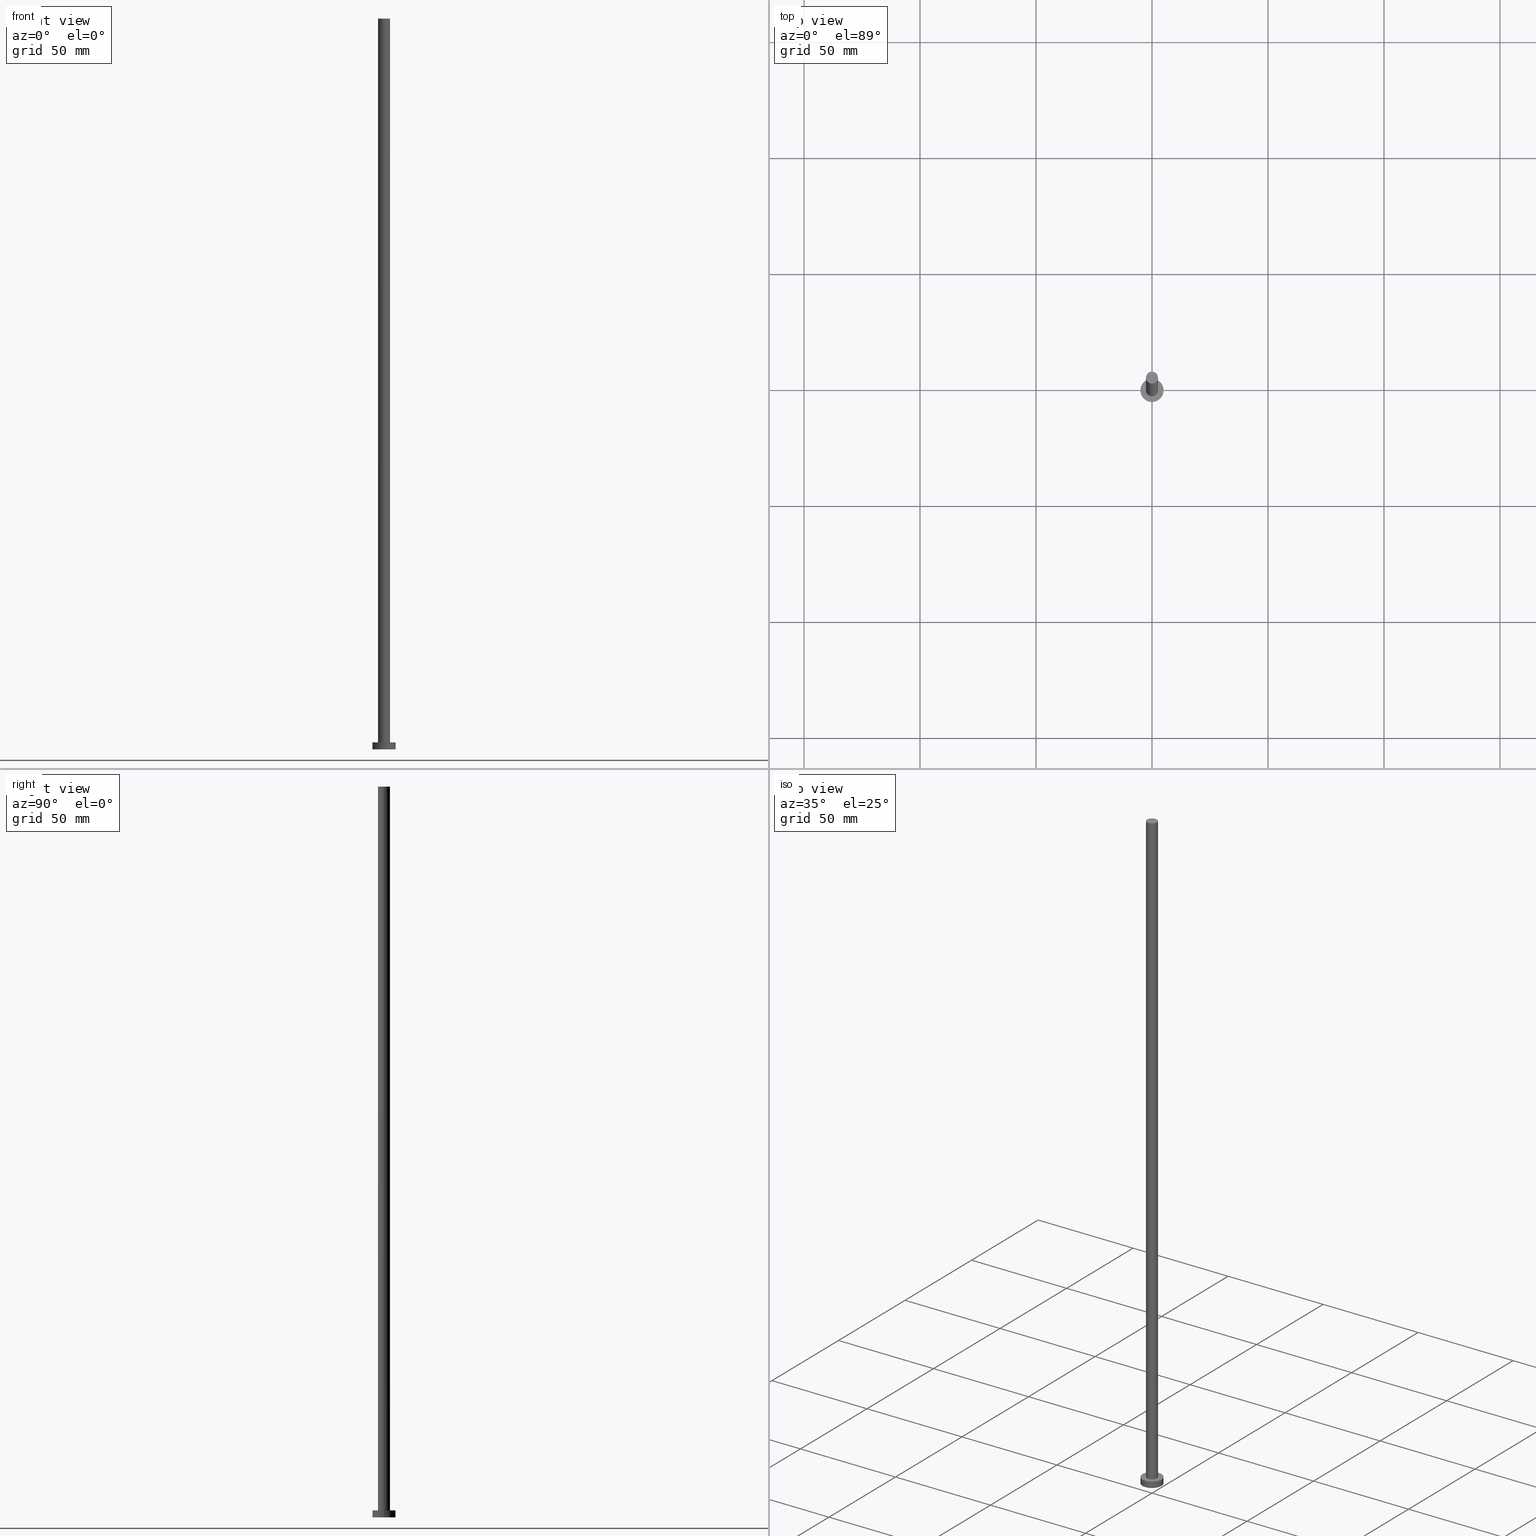
[diagram: canonical four-view strip — front | top / right | iso, engineering-drawing reading convention]
A machine part, canonical four-view strip (front | top / right | iso — engineering-drawing reading convention). The complete STEP part file that produces these views, byte-faithful:
ISO-10303-21;
HEADER;
FILE_DESCRIPTION (( 'STEP AP203' ),
    '1' );
FILE_NAME ('8239.STEP',
    '2023-02-13T13:23:59',
    ( '' ),
    ( '' ),
    'SwSTEP 2.0',
    'SolidWorks 2019',
    '' );
FILE_SCHEMA (( 'CONFIG_CONTROL_DESIGN' ));
ENDSEC;

DATA;
#1 = EDGE_LOOP ( 'NONE', ( #50, #31, #140, #69 ) ) ;
#2 = APPROVAL_DATE_TIME ( #41, #67 ) ;
#3 = ORIENTED_EDGE ( 'NONE', *, *, #131, .T. ) ;
#4 = PERSON_AND_ORGANIZATION_ROLE ( 'classification_officer' ) ;
#5 = CIRCLE ( 'NONE', #33, 2.600000000000000089 ) ;
#6 = ADVANCED_FACE ( 'NONE', ( #109 ), #149, .T. ) ;
#7 = DIRECTION ( 'NONE',  ( 1.000000000000000000, 0.000000000000000000, -0.000000000000000000 ) ) ;
#8 = FACE_OUTER_BOUND ( 'NONE', #111, .T. ) ;
#9 = CARTESIAN_POINT ( 'NONE',  ( 0.000000000000000000, 0.000000000000000000, 3.000000000000000000 ) ) ;
#10 = DIRECTION ( 'NONE',  ( 0.000000000000000000, 0.000000000000000000, 1.000000000000000000 ) ) ;
#11 = AXIS2_PLACEMENT_3D ( 'NONE', #178, #157, #232 ) ;
#12 = DIRECTION ( 'NONE',  ( -1.000000000000000000, 0.000000000000000000, 0.000000000000000000 ) ) ;
#13 = AXIS2_PLACEMENT_3D ( 'NONE', #101, #64, #176 ) ;
#14 = APPROVAL_STATUS ( 'not_yet_approved' ) ;
#15 = ADVANCED_FACE ( 'NONE', ( #227 ), #224, .T. ) ;
#16 = CARTESIAN_POINT ( 'NONE',  ( 0.000000000000000000, 0.000000000000000000, 0.000000000000000000 ) ) ;
#17 = AXIS2_PLACEMENT_3D ( 'NONE', #250, #152, #188 ) ;
#18 = CC_DESIGN_APPROVAL ( #67, ( #133 ) ) ;
#19 = VERTEX_POINT ( 'NONE', #129 ) ;
#20 = PLANE ( 'NONE',  #89 ) ;
#21 = APPROVAL_DATE_TIME ( #108, #138 ) ;
#22 = PERSON_AND_ORGANIZATION ( #136, #32 ) ;
#23 = ORIENTED_EDGE ( 'NONE', *, *, #150, .T. ) ;
#24 = CARTESIAN_POINT ( 'NONE',  ( 5.000000000000000000, 6.123233995736766282E-16, 0.000000000000000000 ) ) ;
#25 = CIRCLE ( 'NONE', #186, 2.600000000000000089 ) ;
#26 = APPROVAL_PERSON_ORGANIZATION ( #22, #67, #181 ) ;
#27 = COORDINATED_UNIVERSAL_TIME_OFFSET ( 1, 0, .AHEAD. ) ;
#28 = DIRECTION ( 'NONE',  ( 1.000000000000000000, 0.000000000000000000, 0.000000000000000000 ) ) ;
#29 = ADVANCED_BREP_SHAPE_REPRESENTATION ( '8239', ( #107, #11 ), #99 ) ;
#30 = DIRECTION ( 'NONE',  ( 1.000000000000000000, 0.000000000000000000, 0.000000000000000000 ) ) ;
#31 = ORIENTED_EDGE ( 'NONE', *, *, #112, .T. ) ;
#32 = ORGANIZATION ( 'NEUR�EN�', 'NEUR�EN�', '' ) ;
#33 = AXIS2_PLACEMENT_3D ( 'NONE', #88, #93, #28 ) ;
#34 = PERSON_AND_ORGANIZATION ( #136, #32 ) ;
#35 = CC_DESIGN_PERSON_AND_ORGANIZATION_ASSIGNMENT ( #223, #221, ( #78 ) ) ;
#36 = DIRECTION ( 'NONE',  ( 0.000000000000000000, 0.000000000000000000, 1.000000000000000000 ) ) ;
#37 = CARTESIAN_POINT ( 'NONE',  ( 0.000000000000000000, 0.000000000000000000, 0.000000000000000000 ) ) ;
#38 = EDGE_LOOP ( 'NONE', ( #255, #102, #23, #245 ) ) ;
#39 = DIRECTION ( 'NONE',  ( 0.000000000000000000, 0.000000000000000000, 1.000000000000000000 ) ) ;
#40 = CARTESIAN_POINT ( 'NONE',  ( 0.000000000000000000, 0.000000000000000000, 315.0000000000000000 ) ) ;
#41 = DATE_AND_TIME ( #240, #171 ) ;
#42 = PERSON_AND_ORGANIZATION ( #136, #32 ) ;
#43 = ORIENTED_EDGE ( 'NONE', *, *, #45, .T. ) ;
#44 = CC_DESIGN_APPROVAL ( #138, ( #78 ) ) ;
#45 = EDGE_CURVE ( 'NONE', #19, #184, #199, .T. ) ;
#46 = ORIENTED_EDGE ( 'NONE', *, *, #100, .F. ) ;
#47 = SECURITY_CLASSIFICATION_LEVEL ( 'unclassified' ) ;
#48 = DIRECTION ( 'NONE',  ( 0.000000000000000000, 0.000000000000000000, 1.000000000000000000 ) ) ;
#49 = PERSON_AND_ORGANIZATION ( #136, #32 ) ;
#50 = ORIENTED_EDGE ( 'NONE', *, *, #182, .F. ) ;
#51 = AXIS2_PLACEMENT_3D ( 'NONE', #60, #197, #62 ) ;
#52 = CARTESIAN_POINT ( 'NONE',  ( -5.000000000000000000, 0.000000000000000000, 3.000000000000000000 ) ) ;
#53 = APPLICATION_CONTEXT ( 'configuration controlled 3d designs of mechanical parts and assemblies' ) ;
#54 = LINE ( 'NONE', #164, #55 ) ;
#55 = VECTOR ( 'NONE', #79, 1000.000000000000000 ) ;
#56 = EDGE_CURVE ( 'NONE', #144, #147, #54, .T. ) ;
#57 = APPROVAL_PERSON_ORGANIZATION ( #42, #138, #83 ) ;
#58 = PERSON_AND_ORGANIZATION_ROLE ( 'design_owner' ) ;
#59 = PRODUCT_RELATED_PRODUCT_CATEGORY ( 'detail', '', ( #235 ) ) ;
#60 = CARTESIAN_POINT ( 'NONE',  ( 0.000000000000000000, 0.000000000000000000, 3.000000000000000000 ) ) ;
#61 = DIRECTION ( 'NONE',  ( 1.000000000000000000, 0.000000000000000000, 0.000000000000000000 ) ) ;
#62 = DIRECTION ( 'NONE',  ( 1.000000000000000000, 0.000000000000000000, -0.000000000000000000 ) ) ;
#63 = ORIENTED_EDGE ( 'NONE', *, *, #195, .F. ) ;
#64 = DIRECTION ( 'NONE',  ( 0.000000000000000000, 0.000000000000000000, 1.000000000000000000 ) ) ;
#65 = DATE_AND_TIME ( #244, #115 ) ;
#66 = APPROVAL_STATUS ( 'not_yet_approved' ) ;
#67 = APPROVAL ( #66, 'NEUR�EN�' ) ;
#68 = AXIS2_PLACEMENT_3D ( 'NONE', #125, #222, #30 ) ;
#69 = ORIENTED_EDGE ( 'NONE', *, *, #150, .F. ) ;
#70 = AXIS2_PLACEMENT_3D ( 'NONE', #40, #139, #155 ) ;
#71 = COORDINATED_UNIVERSAL_TIME_OFFSET ( 1, 0, .AHEAD. ) ;
#72 = DIRECTION ( 'NONE',  ( -0.000000000000000000, -0.000000000000000000, -1.000000000000000000 ) ) ;
#73 = APPROVAL_STATUS ( 'not_yet_approved' ) ;
#74 = ORIENTED_EDGE ( 'NONE', *, *, #173, .T. ) ;
#75 = ORIENTED_EDGE ( 'NONE', *, *, #56, .F. ) ;
#76 = ORIENTED_EDGE ( 'NONE', *, *, #182, .T. ) ;
#77 = CIRCLE ( 'NONE', #153, 2.600000000000000089 ) ;
#78 = PRODUCT_DEFINITION_FORMATION_WITH_SPECIFIED_SOURCE ( 'LIBOVOLN�', '', #235, .NOT_KNOWN. ) ;
#79 = DIRECTION ( 'NONE',  ( -0.000000000000000000, -0.000000000000000000, -1.000000000000000000 ) ) ;
#80 = CARTESIAN_POINT ( 'NONE',  ( 0.000000000000000000, 0.000000000000000000, 3.000000000000000000 ) ) ;
#81 = AXIS2_PLACEMENT_3D ( 'NONE', #121, #117, #213 ) ;
#82 = VERTEX_POINT ( 'NONE', #96 ) ;
#83 = APPROVAL_ROLE ( '' ) ;
#84 = ADVANCED_FACE ( 'NONE', ( #207 ), #204, .T. ) ;
#85 = EDGE_LOOP ( 'NONE', ( #43, #76 ) ) ;
#86 = CIRCLE ( 'NONE', #185, 5.000000000000000000 ) ;
#87 = CALENDAR_DATE ( 2023, 13, 2 ) ;
#88 = CARTESIAN_POINT ( 'NONE',  ( 0.000000000000000000, 0.000000000000000000, 3.000000000000000000 ) ) ;
#89 = AXIS2_PLACEMENT_3D ( 'NONE', #37, #251, #217 ) ;
#90 = DATE_AND_TIME ( #87, #122 ) ;
#91 = CYLINDRICAL_SURFACE ( 'NONE', #229, 5.000000000000000000 ) ;
#92 = DIRECTION ( 'NONE',  ( -0.000000000000000000, -0.000000000000000000, -1.000000000000000000 ) ) ;
#93 = DIRECTION ( 'NONE',  ( 0.000000000000000000, 0.000000000000000000, 1.000000000000000000 ) ) ;
#94 = EDGE_CURVE ( 'NONE', #124, #82, #5, .T. ) ;
#95 = APPLICATION_CONTEXT ( 'configuration controlled 3d designs of mechanical parts and assemblies' ) ;
#96 = CARTESIAN_POINT ( 'NONE',  ( -2.600000000000000089, 0.000000000000000000, 3.000000000000000000 ) ) ;
#97 = APPROVAL_ROLE ( '' ) ;
#98 = CLOSED_SHELL ( 'NONE', ( #202, #156, #6, #211, #214, #15, #84 ) ) ;
#99 =( GEOMETRIC_REPRESENTATION_CONTEXT ( 3 ) GLOBAL_UNCERTAINTY_ASSIGNED_CONTEXT ( ( #248 ) ) GLOBAL_UNIT_ASSIGNED_CONTEXT ( ( #212, #177, #234 ) ) REPRESENTATION_CONTEXT ( 'NONE', 'WORKASPACE' ) );
#100 = EDGE_CURVE ( 'NONE', #236, #191, #243, .T. ) ;
#101 = CARTESIAN_POINT ( 'NONE',  ( 0.000000000000000000, 0.000000000000000000, 0.000000000000000000 ) ) ;
#102 = ORIENTED_EDGE ( 'NONE', *, *, #45, .F. ) ;
#103 = VECTOR ( 'NONE', #72, 1000.000000000000000 ) ;
#104 = CC_DESIGN_PERSON_AND_ORGANIZATION_ASSIGNMENT ( #161, #237, ( #169 ) ) ;
#105 = DATE_TIME_ROLE ( 'creation_date' ) ;
#106 = CARTESIAN_POINT ( 'NONE',  ( 0.000000000000000000, 0.000000000000000000, 315.0000000000000000 ) ) ;
#107 = MANIFOLD_SOLID_BREP ( 'P�idat vysunut�m3', #98 ) ;
#108 = DATE_AND_TIME ( #148, #175 ) ;
#109 = FACE_OUTER_BOUND ( 'NONE', #110, .T. ) ;
#110 = EDGE_LOOP ( 'NONE', ( #75, #63, #218, #74 ) ) ;
#111 = EDGE_LOOP ( 'NONE', ( #165, #216, #249, #46 ) ) ;
#112 = EDGE_CURVE ( 'NONE', #184, #124, #209, .T. ) ;
#113 = DIRECTION ( 'NONE',  ( -0.000000000000000000, -0.000000000000000000, -1.000000000000000000 ) ) ;
#114 = VECTOR ( 'NONE', #92, 1000.000000000000000 ) ;
#115 = LOCAL_TIME ( 14, 23, 59.00000000000000000, #27 ) ;
#116 = FACE_OUTER_BOUND ( 'NONE', #130, .T. ) ;
#117 = DIRECTION ( 'NONE',  ( 0.000000000000000000, 0.000000000000000000, 1.000000000000000000 ) ) ;
#118 = APPROVAL ( #14, 'NEUR�EN�' ) ;
#119 = CARTESIAN_POINT ( 'NONE',  ( -5.000000000000000000, 0.000000000000000000, 3.000000000000000000 ) ) ;
#120 = ORIENTED_EDGE ( 'NONE', *, *, #94, .F. ) ;
#121 = CARTESIAN_POINT ( 'NONE',  ( 0.000000000000000000, 0.000000000000000000, 3.000000000000000000 ) ) ;
#122 = LOCAL_TIME ( 14, 23, 59.00000000000000000, #128 ) ;
#123 = DATE_TIME_ROLE ( 'classification_date' ) ;
#124 = VERTEX_POINT ( 'NONE', #189 ) ;
#125 = CARTESIAN_POINT ( 'NONE',  ( 0.000000000000000000, 0.000000000000000000, 315.0000000000000000 ) ) ;
#126 = COORDINATED_UNIVERSAL_TIME_OFFSET ( 1, 0, .AHEAD. ) ;
#127 = DIRECTION ( 'NONE',  ( 1.000000000000000000, 0.000000000000000000, 0.000000000000000000 ) ) ;
#128 = COORDINATED_UNIVERSAL_TIME_OFFSET ( 1, 0, .AHEAD. ) ;
#129 = CARTESIAN_POINT ( 'NONE',  ( -2.600000000000000089, 0.000000000000000000, 315.0000000000000000 ) ) ;
#130 = EDGE_LOOP ( 'NONE', ( #172, #3 ) ) ;
#131 = EDGE_CURVE ( 'NONE', #144, #236, #193, .T. ) ;
#132 = CARTESIAN_POINT ( 'NONE',  ( 0.000000000000000000, 0.000000000000000000, 315.0000000000000000 ) ) ;
#133 = SECURITY_CLASSIFICATION ( '', '', #47 ) ;
#134 = APPLICATION_PROTOCOL_DEFINITION ( 'international standard', 'config_control_design', 1994, #95 ) ;
#135 = AXIS2_PLACEMENT_3D ( 'NONE', #106, #113, #12 ) ;
#136 = PERSON ( 'NEUR�EN�', 'NEUR�EN�', 'NEUR�EN�', ('NEUR�EN�'), ('NEUR�EN�'), ('NEUR�EN�') ) ;
#137 = FACE_BOUND ( 'NONE', #160, .T. ) ;
#138 = APPROVAL ( #73, 'NEUR�EN�' ) ;
#139 = DIRECTION ( 'NONE',  ( -0.000000000000000000, -0.000000000000000000, -1.000000000000000000 ) ) ;
#140 = ORIENTED_EDGE ( 'NONE', *, *, #94, .T. ) ;
#141 = CC_DESIGN_APPROVAL ( #118, ( #169 ) ) ;
#142 = FACE_OUTER_BOUND ( 'NONE', #1, .T. ) ;
#143 = CALENDAR_DATE ( 2023, 13, 2 ) ;
#144 = VERTEX_POINT ( 'NONE', #206 ) ;
#145 = CC_DESIGN_DATE_AND_TIME_ASSIGNMENT ( #65, #105, ( #169 ) ) ;
#146 = COORDINATED_UNIVERSAL_TIME_OFFSET ( 1, 0, .AHEAD. ) ;
#147 = VERTEX_POINT ( 'NONE', #24 ) ;
#148 = CALENDAR_DATE ( 2023, 13, 2 ) ;
#149 = CYLINDRICAL_SURFACE ( 'NONE', #17, 5.000000000000000000 ) ;
#150 = EDGE_CURVE ( 'NONE', #19, #82, #168, .T. ) ;
#151 = CARTESIAN_POINT ( 'NONE',  ( 0.000000000000000000, 0.000000000000000000, 3.000000000000000000 ) ) ;
#152 = DIRECTION ( 'NONE',  ( -0.000000000000000000, -0.000000000000000000, -1.000000000000000000 ) ) ;
#153 = AXIS2_PLACEMENT_3D ( 'NONE', #80, #215, #231 ) ;
#154 = PERSON_AND_ORGANIZATION ( #136, #32 ) ;
#155 = DIRECTION ( 'NONE',  ( -1.000000000000000000, 0.000000000000000000, 0.000000000000000000 ) ) ;
#156 = ADVANCED_FACE ( 'NONE', ( #8 ), #91, .T. ) ;
#157 = DIRECTION ( 'NONE',  ( 0.000000000000000000, 0.000000000000000000, 1.000000000000000000 ) ) ;
#158 = APPLICATION_PROTOCOL_DEFINITION ( 'international standard', 'config_control_design', 1994, #53 ) ;
#159 = AXIS2_PLACEMENT_3D ( 'NONE', #132, #48, #7 ) ;
#160 = EDGE_LOOP ( 'NONE', ( #201, #120 ) ) ;
#161 = PERSON_AND_ORGANIZATION ( #136, #32 ) ;
#162 = CC_DESIGN_PERSON_AND_ORGANIZATION_ASSIGNMENT ( #154, #58, ( #235 ) ) ;
#163 = CC_DESIGN_SECURITY_CLASSIFICATION ( #133, ( #78 ) ) ;
#164 = CARTESIAN_POINT ( 'NONE',  ( 5.000000000000000000, 6.123233995736766282E-16, 3.000000000000000000 ) ) ;
#165 = ORIENTED_EDGE ( 'NONE', *, *, #131, .F. ) ;
#166 = DIRECTION ( 'NONE',  ( -0.000000000000000000, -0.000000000000000000, -1.000000000000000000 ) ) ;
#167 = CIRCLE ( 'NONE', #81, 5.000000000000000000 ) ;
#168 = LINE ( 'NONE', #187, #114 ) ;
#169 = PRODUCT_DEFINITION ( 'NEZN�M�', '', #78, #170 ) ;
#170 = DESIGN_CONTEXT ( 'detailed design', #95, 'design' ) ;
#171 = LOCAL_TIME ( 14, 23, 59.00000000000000000, #146 ) ;
#172 = ORIENTED_EDGE ( 'NONE', *, *, #195, .T. ) ;
#173 = EDGE_CURVE ( 'NONE', #191, #147, #86, .T. ) ;
#174 = PLANE ( 'NONE',  #51 ) ;
#175 = LOCAL_TIME ( 14, 23, 59.00000000000000000, #71 ) ;
#176 = DIRECTION ( 'NONE',  ( 1.000000000000000000, 0.000000000000000000, 0.000000000000000000 ) ) ;
#177 =( NAMED_UNIT ( * ) PLANE_ANGLE_UNIT ( ) SI_UNIT ( $, .RADIAN. ) );
#178 = CARTESIAN_POINT ( 'NONE',  ( 0.000000000000000000, 0.000000000000000000, 0.000000000000000000 ) ) ;
#179 = VECTOR ( 'NONE', #208, 1000.000000000000000 ) ;
#180 = ORIENTED_EDGE ( 'NONE', *, *, #173, .F. ) ;
#181 = APPROVAL_ROLE ( '' ) ;
#182 = EDGE_CURVE ( 'NONE', #184, #19, #25, .T. ) ;
#183 = PERSON_AND_ORGANIZATION_ROLE ( 'design_supplier' ) ;
#184 = VERTEX_POINT ( 'NONE', #230 ) ;
#185 = AXIS2_PLACEMENT_3D ( 'NONE', #16, #36, #233 ) ;
#186 = AXIS2_PLACEMENT_3D ( 'NONE', #198, #39, #61 ) ;
#187 = CARTESIAN_POINT ( 'NONE',  ( -2.600000000000000089, 0.000000000000000000, 315.0000000000000000 ) ) ;
#188 = DIRECTION ( 'NONE',  ( -1.000000000000000000, 0.000000000000000000, 0.000000000000000000 ) ) ;
#189 = CARTESIAN_POINT ( 'NONE',  ( 2.600000000000000089, 3.184081677783118191E-16, 3.000000000000000000 ) ) ;
#190 = AXIS2_PLACEMENT_3D ( 'NONE', #151, #10, #127 ) ;
#191 = VERTEX_POINT ( 'NONE', #252 ) ;
#192 = EDGE_CURVE ( 'NONE', #147, #191, #194, .T. ) ;
#193 = CIRCLE ( 'NONE', #190, 5.000000000000000000 ) ;
#194 = CIRCLE ( 'NONE', #13, 5.000000000000000000 ) ;
#195 = EDGE_CURVE ( 'NONE', #236, #144, #167, .T. ) ;
#196 = FACE_OUTER_BOUND ( 'NONE', #241, .T. ) ;
#197 = DIRECTION ( 'NONE',  ( 0.000000000000000000, 0.000000000000000000, 1.000000000000000000 ) ) ;
#198 = CARTESIAN_POINT ( 'NONE',  ( 0.000000000000000000, 0.000000000000000000, 315.0000000000000000 ) ) ;
#199 = CIRCLE ( 'NONE', #68, 2.600000000000000089 ) ;
#200 = CYLINDRICAL_SURFACE ( 'NONE', #70, 2.600000000000000089 ) ;
#201 = ORIENTED_EDGE ( 'NONE', *, *, #238, .F. ) ;
#202 = ADVANCED_FACE ( 'NONE', ( #142 ), #200, .T. ) ;
#203 = DATE_AND_TIME ( #143, #242 ) ;
#204 = PLANE ( 'NONE',  #159 ) ;
#205 = SHAPE_DEFINITION_REPRESENTATION ( #210, #29 ) ;
#206 = CARTESIAN_POINT ( 'NONE',  ( 5.000000000000000000, 6.123233995736766282E-16, 3.000000000000000000 ) ) ;
#207 = FACE_OUTER_BOUND ( 'NONE', #85, .T. ) ;
#208 = DIRECTION ( 'NONE',  ( -0.000000000000000000, -0.000000000000000000, -1.000000000000000000 ) ) ;
#209 = LINE ( 'NONE', #246, #103 ) ;
#210 = PRODUCT_DEFINITION_SHAPE ( 'NONE', 'NONE',  #169 ) ;
#211 = ADVANCED_FACE ( 'NONE', ( #137, #116 ), #174, .T. ) ;
#212 =( LENGTH_UNIT ( ) NAMED_UNIT ( * ) SI_UNIT ( .MILLI., .METRE. ) );
#213 = DIRECTION ( 'NONE',  ( 1.000000000000000000, 0.000000000000000000, 0.000000000000000000 ) ) ;
#214 = ADVANCED_FACE ( 'NONE', ( #196 ), #20, .F. ) ;
#215 = DIRECTION ( 'NONE',  ( 0.000000000000000000, 0.000000000000000000, 1.000000000000000000 ) ) ;
#216 = ORIENTED_EDGE ( 'NONE', *, *, #56, .T. ) ;
#217 = DIRECTION ( 'NONE',  ( 1.000000000000000000, 0.000000000000000000, -0.000000000000000000 ) ) ;
#218 = ORIENTED_EDGE ( 'NONE', *, *, #100, .T. ) ;
#219 = APPROVAL_DATE_TIME ( #203, #118 ) ;
#220 = ORIENTED_EDGE ( 'NONE', *, *, #192, .F. ) ;
#221 = PERSON_AND_ORGANIZATION_ROLE ( 'creator' ) ;
#222 = DIRECTION ( 'NONE',  ( 0.000000000000000000, 0.000000000000000000, 1.000000000000000000 ) ) ;
#223 = PERSON_AND_ORGANIZATION ( #136, #32 ) ;
#224 = CYLINDRICAL_SURFACE ( 'NONE', #135, 2.600000000000000089 ) ;
#225 = APPROVAL_PERSON_ORGANIZATION ( #34, #118, #97 ) ;
#226 = DIRECTION ( 'NONE',  ( -1.000000000000000000, 0.000000000000000000, 0.000000000000000000 ) ) ;
#227 = FACE_OUTER_BOUND ( 'NONE', #38, .T. ) ;
#228 = CC_DESIGN_PERSON_AND_ORGANIZATION_ASSIGNMENT ( #49, #4, ( #133 ) ) ;
#229 = AXIS2_PLACEMENT_3D ( 'NONE', #9, #166, #226 ) ;
#230 = CARTESIAN_POINT ( 'NONE',  ( 2.600000000000000089, 3.184081677783118191E-16, 315.0000000000000000 ) ) ;
#231 = DIRECTION ( 'NONE',  ( 1.000000000000000000, 0.000000000000000000, 0.000000000000000000 ) ) ;
#232 = DIRECTION ( 'NONE',  ( 1.000000000000000000, 0.000000000000000000, 0.000000000000000000 ) ) ;
#233 = DIRECTION ( 'NONE',  ( 1.000000000000000000, 0.000000000000000000, 0.000000000000000000 ) ) ;
#234 =( NAMED_UNIT ( * ) SI_UNIT ( $, .STERADIAN. ) SOLID_ANGLE_UNIT ( ) );
#235 = PRODUCT ( '8239', '8239', '', ( #254 ) ) ;
#236 = VERTEX_POINT ( 'NONE', #119 ) ;
#237 = PERSON_AND_ORGANIZATION_ROLE ( 'creator' ) ;
#238 = EDGE_CURVE ( 'NONE', #82, #124, #77, .T. ) ;
#239 = PERSON_AND_ORGANIZATION ( #136, #32 ) ;
#240 = CALENDAR_DATE ( 2023, 13, 2 ) ;
#241 = EDGE_LOOP ( 'NONE', ( #180, #220 ) ) ;
#242 = LOCAL_TIME ( 14, 23, 59.00000000000000000, #126 ) ;
#243 = LINE ( 'NONE', #52, #179 ) ;
#244 = CALENDAR_DATE ( 2023, 13, 2 ) ;
#245 = ORIENTED_EDGE ( 'NONE', *, *, #238, .T. ) ;
#246 = CARTESIAN_POINT ( 'NONE',  ( 2.600000000000000089, 3.184081677783118191E-16, 315.0000000000000000 ) ) ;
#247 = CC_DESIGN_PERSON_AND_ORGANIZATION_ASSIGNMENT ( #239, #183, ( #78 ) ) ;
#248 = UNCERTAINTY_MEASURE_WITH_UNIT (LENGTH_MEASURE( 1.000000000000000082E-05 ), #212, 'distance_accuracy_value', 'NONE');
#249 = ORIENTED_EDGE ( 'NONE', *, *, #192, .T. ) ;
#250 = CARTESIAN_POINT ( 'NONE',  ( 0.000000000000000000, 0.000000000000000000, 3.000000000000000000 ) ) ;
#251 = DIRECTION ( 'NONE',  ( 0.000000000000000000, 0.000000000000000000, 1.000000000000000000 ) ) ;
#252 = CARTESIAN_POINT ( 'NONE',  ( -5.000000000000000000, 0.000000000000000000, 0.000000000000000000 ) ) ;
#253 = CC_DESIGN_DATE_AND_TIME_ASSIGNMENT ( #90, #123, ( #133 ) ) ;
#254 = MECHANICAL_CONTEXT ( 'NONE', #53, 'mechanical' ) ;
#255 = ORIENTED_EDGE ( 'NONE', *, *, #112, .F. ) ;
ENDSEC;
END-ISO-10303-21;
